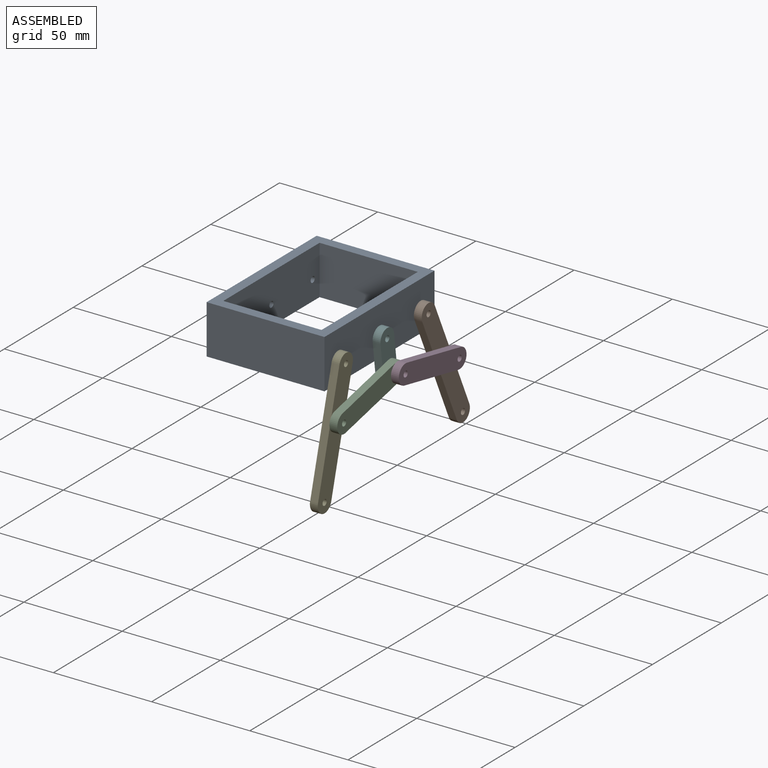
[diagram: assembled view]
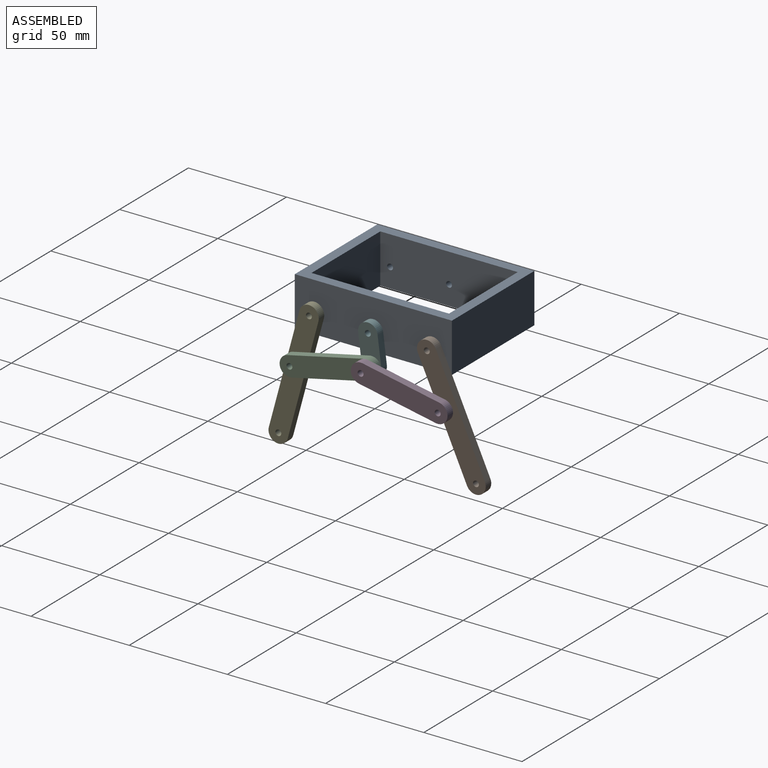
[diagram: assembled view, second angle]
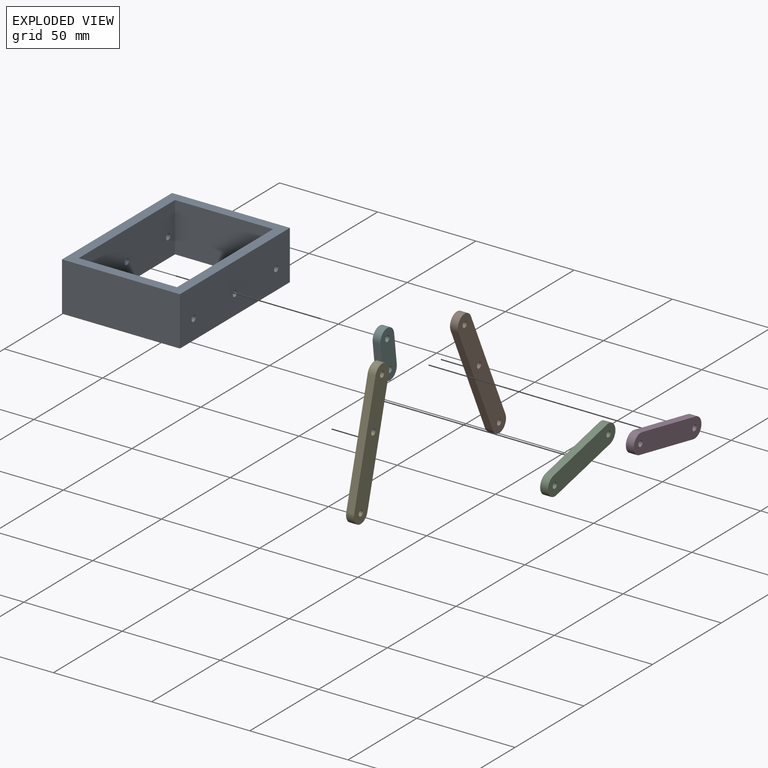
[diagram: exploded view]
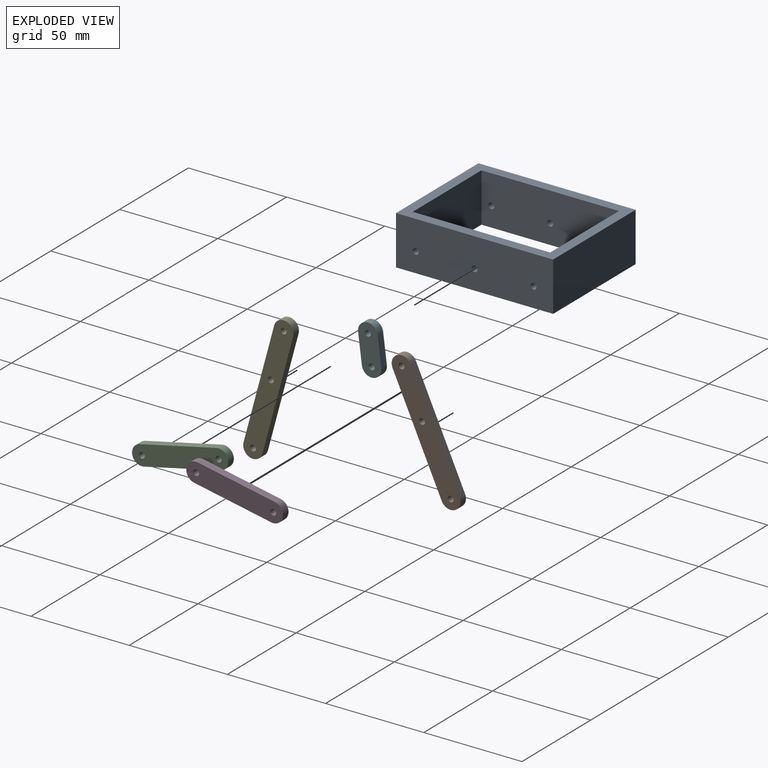
[diagram: exploded view, second angle]
ASSEMBLY  parts=6 mates=10
PART A: 16 faces, bbox 60x80x25 mm
  f0: plane 60x25mm, normal (0,1,0), area 1500mm2, adj f1,f7,f8,f9
  f1: plane 80x25mm, normal (-1,0,0), area 1978.8mm2, adj f0,f2,f8,f9,f10,f11,f12
  f2: plane 60x25mm, normal (0,-1,0), area 1500mm2, adj f1,f7,f8,f9
  f3: plane 50x25mm, normal (0,-1,0), area 1250mm2, adj f4,f6,f8,f9
  f4: plane 70x25mm, normal (-1,0,0), area 1728.8mm2, adj f3,f5,f8,f9,f13,f14,f15
  f5: plane 50x25mm, normal (0,1,0), area 1250mm2, adj f4,f6,f8,f9
  f6: plane 70x25mm, normal (1,0,0), area 1728.8mm2, adj f3,f5,f8,f9,f10,f11,f12
  f7: plane 80x25mm, normal (1,0,0), area 1978.8mm2, adj f0,f2,f8,f9,f13,f14,f15
  f8: plane 80x60mm, normal (0,0,1), area 1300mm2, adj f0,f1,f2,f3,f4,f5,f6,f7
  f9: plane 80x60mm, normal (0,0,-1), area 1300mm2, adj f0,f1,f2,f3,f4,f5,f6,f7
  f10: cylinder r=1.5mm len=5mm, axis (1,0,0), area 47.1mm2, adj f1,f6
  f11: cylinder r=1.5mm len=5mm, axis (1,0,0), area 47.1mm2, adj f1,f6
  f12: cylinder r=1.5mm len=5mm, axis (1,0,0), area 47.1mm2, adj f1,f6
  f13: cylinder r=1.5mm len=5mm, axis (1,0,0), area 47.1mm2, adj f4,f7
  f14: cylinder r=1.5mm len=5mm, axis (1,0,0), area 47.1mm2, adj f4,f7
  f15: cylinder r=1.5mm len=5mm, axis (1,0,0), area 47.1mm2, adj f4,f7
PART B: 9 faces, bbox 10x70x4 mm
  f0: plane 60x4mm, normal (1,0,0), area 240mm2, adj f1,f5,f7,f8
  f1: cylinder r=5mm len=10mm, axis (0,0,-1), area 62.8mm2, adj f0,f2,f7,f8
  f2: plane 60x4mm, normal (-1,0,0), area 240mm2, adj f1,f5,f7,f8
  f3: cylinder r=1.5mm len=4mm, axis (0,0,-1), area 37.7mm2, adj f7,f8
  f4: cylinder r=1.5mm len=4mm, axis (0,0,-1), area 37.7mm2, adj f7,f8
  f5: cylinder r=5mm len=10mm, axis (0,0,-1), area 62.8mm2, adj f0,f2,f7,f8
  f6: cylinder r=1.5mm len=4mm, axis (0,0,-1), area 37.7mm2, adj f7,f8
  f7: plane 70x10mm, normal (0,0,1), area 657.3mm2, adj f0,f1,f2,f3,f4,f5,f6
  f8: plane 70x10mm, normal (0,0,-1), area 657.3mm2, adj f0,f1,f2,f3,f4,f5,f6
PART C: 8 faces, bbox 10x50x4 mm
  f0: cylinder r=5mm len=10mm, axis (0,0,-1), area 62.8mm2, adj f1,f3,f6,f7
  f1: plane 40x4mm, normal (-1,0,0), area 160mm2, adj f0,f2,f6,f7
  f2: cylinder r=5mm len=10mm, axis (0,0,-1), area 62.8mm2, adj f1,f3,f6,f7
  f3: plane 40x4mm, normal (1,0,0), area 160mm2, adj f0,f2,f6,f7
  f4: cylinder r=1.5mm len=4mm, axis (0,0,-1), area 37.7mm2, adj f6,f7
  f5: cylinder r=1.5mm len=4mm, axis (0,0,-1), area 37.7mm2, adj f6,f7
  f6: plane 50x10mm, normal (0,0,1), area 464.4mm2, adj f0,f1,f2,f3,f4,f5
  f7: plane 50x10mm, normal (0,0,-1), area 464.4mm2, adj f0,f1,f2,f3,f4,f5
PART D: same geometry as C
PART E: same geometry as B
PART F: 8 faces, bbox 10x25x4 mm
  f0: cylinder r=5mm len=10mm, axis (0,0,-1), area 62.8mm2, adj f1,f3,f6,f7
  f1: plane 15x4mm, normal (-1,0,0), area 60mm2, adj f0,f2,f6,f7
  f2: cylinder r=5mm len=10mm, axis (0,0,-1), area 62.8mm2, adj f1,f3,f6,f7
  f3: plane 15x4mm, normal (1,0,0), area 60mm2, adj f0,f2,f6,f7
  f4: cylinder r=1.5mm len=4mm, axis (0,0,-1), area 37.7mm2, adj f6,f7
  f5: cylinder r=1.5mm len=4mm, axis (0,0,-1), area 37.7mm2, adj f6,f7
  f6: plane 25x10mm, normal (0,0,1), area 214.4mm2, adj f0,f1,f2,f3,f4,f5
  f7: plane 25x10mm, normal (0,0,-1), area 214.4mm2, adj f0,f1,f2,f3,f4,f5
PLACE A t=(-28.67,-14.79,10.65)mm fixed
PLACE B rot(axis=(-0.48,-0.74,0.48),106.9deg) t=(5.33,23.13,3.4)mm
PLACE C rot(axis=(0.11,-0.99,-0.11),90.7deg) t=(9.33,-36.27,0.56)mm
PLACE D rot(axis=(-0.1,-0.99,0.1),90.5deg) t=(13.33,2.86,2.68)mm
PLACE E rot(axis=(-0.62,-0.48,0.62),129deg) t=(5.33,-49.72,2.32)mm
PLACE F rot(axis=(0.6,-0.53,-0.6),124.3deg) t=(5.33,-13.92,13.89)mm
MATE planar C.f0 <-> F.f2  axis (-1,0,0) through (5.33,-12.88,5.77)mm
MATE cylindrical D.f2 <-> C.f0  axis (-1,0,0) through (9.33,-12.88,5.77)mm
MATE cylindrical F.f2 <-> C.f0  axis (1,0,0) through (5.33,-12.88,5.77)mm
MATE cylindrical B.f3 <-> A.f10  axis (-1,0,0) through (1.33,15.21,20.65)mm
MATE planar E.f7 <-> A.f7  axis (-1,0,0) through (1.33,-52.6,-8.37)mm
MATE planar F.f0 <-> A.f11  axis (-1,0,0) through (1.33,-14.79,20.65)mm
MATE cylindrical F.f0 <-> A.f11  axis (-1,0,0) through (1.33,-14.79,20.65)mm
MATE cylindrical E.f3 <-> A.f12  axis (-1,0,0) through (1.33,-44.79,20.65)mm
MATE planar B.f3 <-> A.f10  axis (-1,0,0) through (1.33,15.21,20.65)mm
MATE planar D.f2 <-> C.f0  axis (-1,0,0) through (9.33,-12.88,5.77)mm
